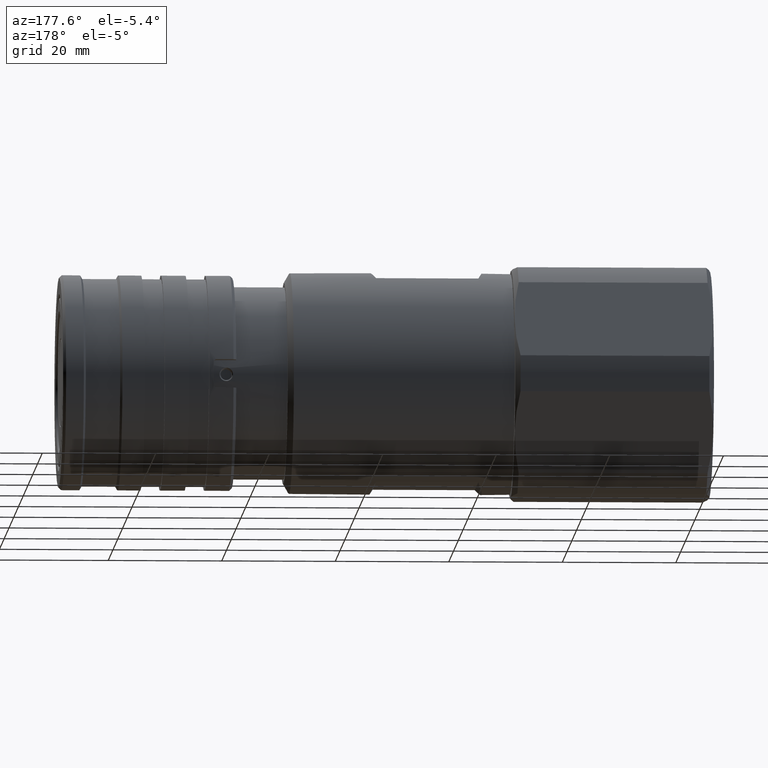
[diagram: clean part render]
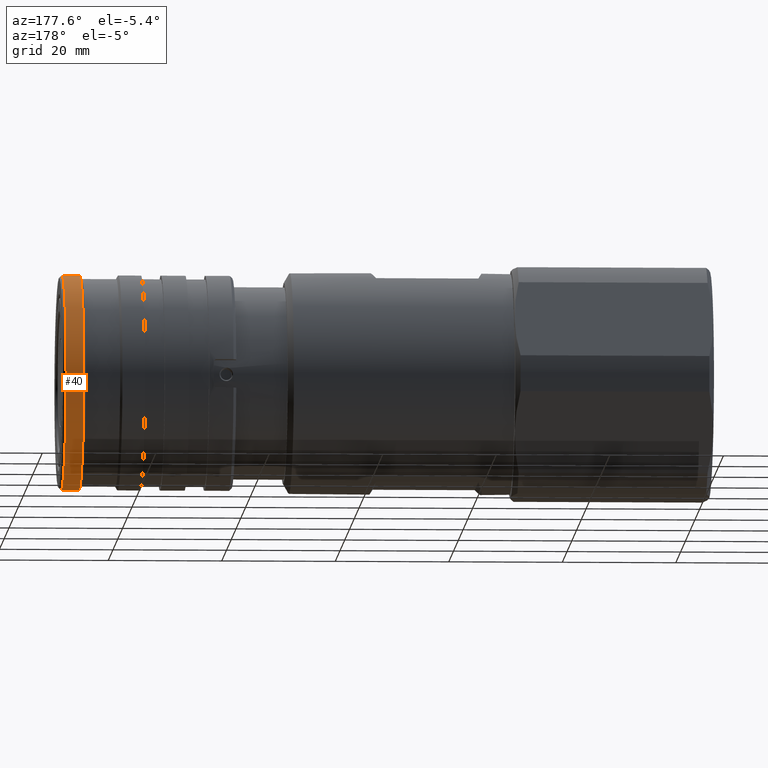
[diagram: same view with one face highlighted and labeled with its STEP entity id]
A machine part, auxiliary view. The second image highlights one B-rep face of the part: STEP entity #40.
In plain terms, the highlighted cylindrical surface (partial cylindrical patch) has radius 19 mm, axis along (-1, -0, -0).
Its self-contained STEP definition (entity closure, byte-faithful):
#31 = CARTESIAN_POINT ( 'NONE',  ( 22.39999999999999500, 0.0000000000000000000, 19.00000000000000000 ) ) ;
#32 = DIRECTION ( 'NONE',  ( -1.000000000000000000, -0.0000000000000000000, -0.0000000000000000000 ) ) ;
#40 = ADVANCED_FACE ( 'NONE', ( #2112 ), #2113, .T. ) ;
#78 = CARTESIAN_POINT ( 'NONE',  ( 22.39999999999999500, 2.326828918379971000E-015, -19.00000000000000000 ) ) ;
#79 = DIRECTION ( 'NONE',  ( -1.000000000000000000, -0.0000000000000000000, -0.0000000000000000000 ) ) ;
#534 = CARTESIAN_POINT ( 'NONE',  ( 49.27527767497325300, 2.326828918379970200E-015, 18.99999999999999300 ) ) ;
#921 = CARTESIAN_POINT ( 'NONE',  ( 52.39999999999999100, 0.0000000000000000000, 0.0000000000000000000 ) ) ;
#922 = DIRECTION ( 'NONE',  ( -1.000000000000000000, -0.0000000000000000000, -0.0000000000000000000 ) ) ;
#923 = DIRECTION ( 'NONE',  ( 0.0000000000000000000, 0.0000000000000000000, -1.000000000000000000 ) ) ;
#942 = CARTESIAN_POINT ( 'NONE',  ( 49.27527767497325300, 0.0000000000000000000, 0.0000000000000000000 ) ) ;
#943 = DIRECTION ( 'NONE',  ( -1.000000000000000000, -0.0000000000000000000, -0.0000000000000000000 ) ) ;
#944 = DIRECTION ( 'NONE',  ( 0.0000000000000000000, 0.0000000000000000000, 1.000000000000000000 ) ) ;
#1065 = CARTESIAN_POINT ( 'NONE',  ( 52.39999999999999100, 0.0000000000000000000, 19.00000000000000000 ) ) ;
#1087 = CARTESIAN_POINT ( 'NONE',  ( 52.39999999999999100, 2.326828918379971000E-015, -19.00000000000000000 ) ) ;
#1143 = VERTEX_POINT ( 'NONE', #3399 ) ;
#1237 = ORIENTED_EDGE ( 'NONE', *, *, #2354, .F. ) ;
#1244 = ORIENTED_EDGE ( 'NONE', *, *, #2346, .T. ) ;
#1247 = ORIENTED_EDGE ( 'NONE', *, *, #1357, .F. ) ;
#1357 = EDGE_CURVE ( 'NONE', #3611, #1841, #2673, .T. ) ;
#1369 = EDGE_CURVE ( 'NONE', #3633, #1143, #2688, .T. ) ;
#1453 = ORIENTED_EDGE ( 'NONE', *, *, #1369, .T. ) ;
#1521 = CIRCLE ( 'NONE', #2601, 19.00000000000000000 ) ;
#1532 = CIRCLE ( 'NONE', #2604, 19.00000000000000000 ) ;
#1841 = VERTEX_POINT ( 'NONE', #534 ) ;
#2095 = EDGE_LOOP ( 'NONE', ( #1244, #1453, #1237, #1247 ) ) ;
#2112 = FACE_OUTER_BOUND ( 'NONE', #2095, .T. ) ;
#2113 = CYLINDRICAL_SURFACE ( 'NONE', #2356, 19.00000000000000000 ) ;
#2346 = EDGE_CURVE ( 'NONE', #3611, #3633, #1521, .T. ) ;
#2354 = EDGE_CURVE ( 'NONE', #1841, #1143, #1532, .T. ) ;
#2356 = AXIS2_PLACEMENT_3D ( 'NONE', #2911, #2912, #2913 ) ;
#2601 = AXIS2_PLACEMENT_3D ( 'NONE', #921, #922, #923 ) ;
#2604 = AXIS2_PLACEMENT_3D ( 'NONE', #942, #943, #944 ) ;
#2673 = LINE ( 'NONE', #31, #2675 ) ;
#2675 = VECTOR ( 'NONE', #32, 1000.000000000000000 ) ;
#2688 = LINE ( 'NONE', #78, #2689 ) ;
#2689 = VECTOR ( 'NONE', #79, 1000.000000000000000 ) ;
#2911 = CARTESIAN_POINT ( 'NONE',  ( 22.39999999999999500, 0.0000000000000000000, 0.0000000000000000000 ) ) ;
#2912 = DIRECTION ( 'NONE',  ( -1.000000000000000000, -0.0000000000000000000, -0.0000000000000000000 ) ) ;
#2913 = DIRECTION ( 'NONE',  ( 0.0000000000000000000, 0.0000000000000000000, 1.000000000000000000 ) ) ;
#3399 = CARTESIAN_POINT ( 'NONE',  ( 49.27527767497325300, 0.0000000000000000000, -18.99999999999999300 ) ) ;
#3611 = VERTEX_POINT ( 'NONE', #1065 ) ;
#3633 = VERTEX_POINT ( 'NONE', #1087 ) ;